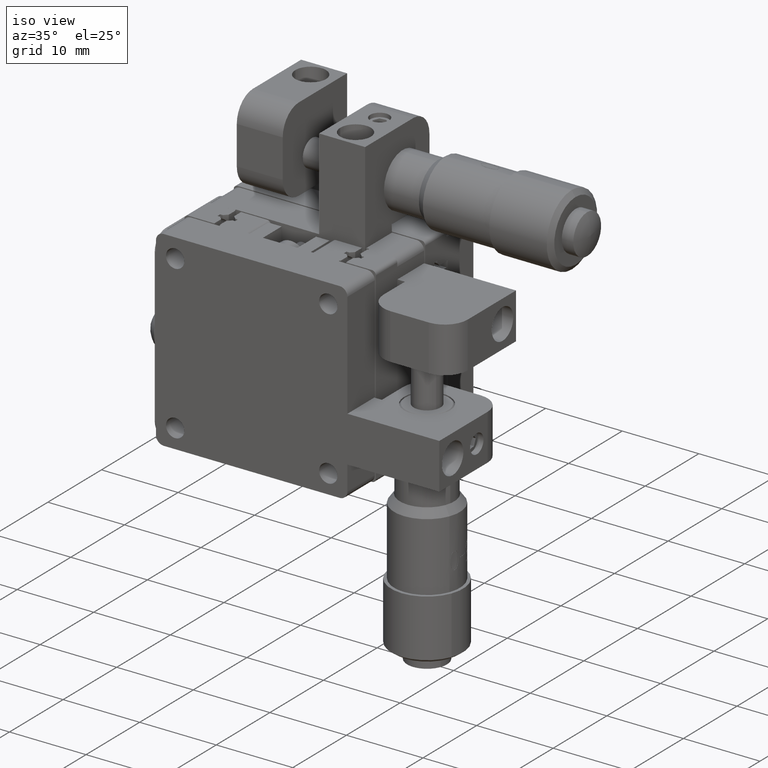
[diagram: clean part render]
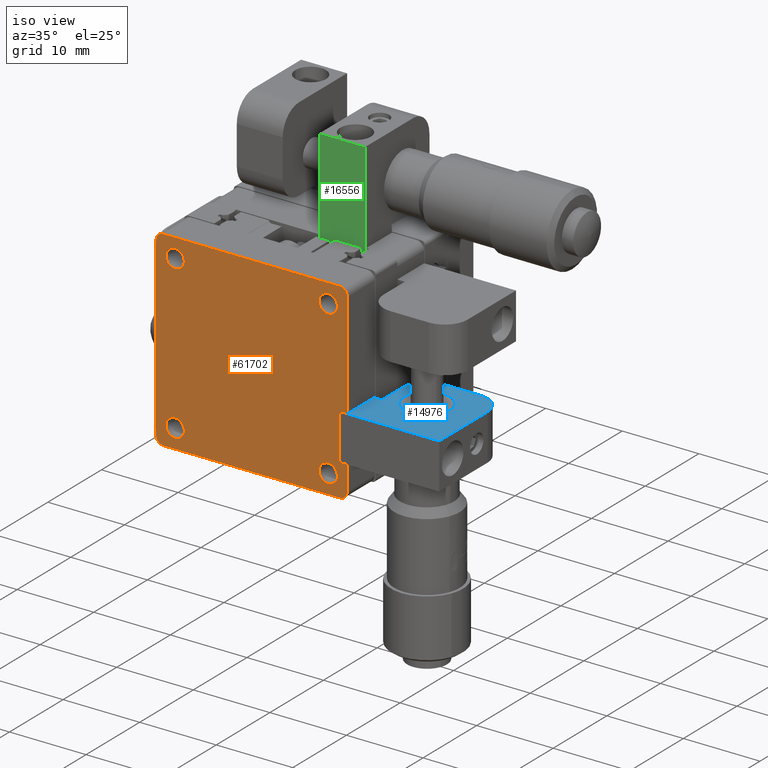
[diagram: same view with three faces highlighted in distinct colors, each labeled with its STEP entity id]
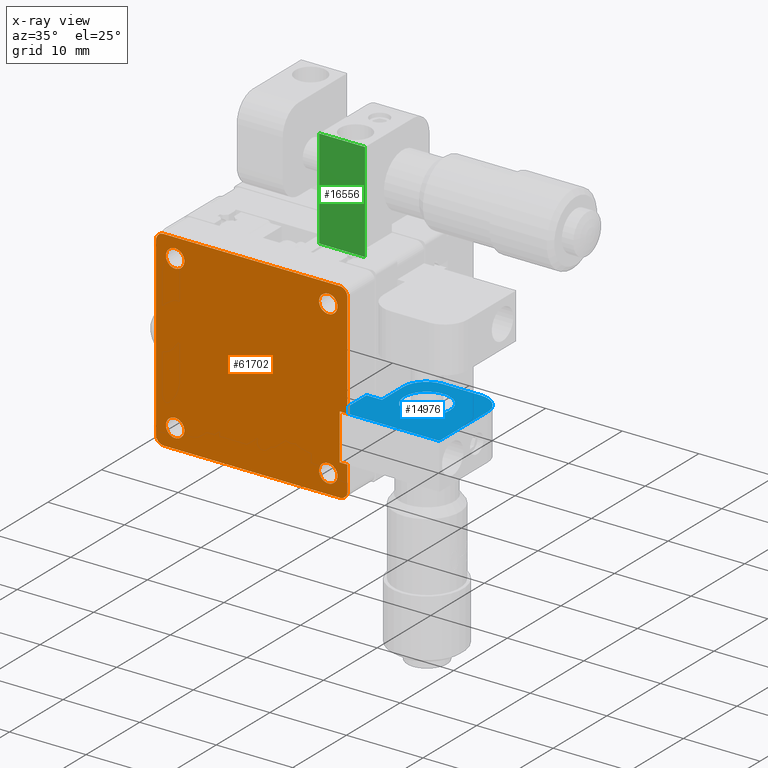
[diagram: x-ray of the same camera — body ghosted, the three highlighted faces saturated]
A machine part, iso view with three faces highlighted in distinct colors.
The next image is the same camera in x-ray (body ghosted, the three faces saturated) — at least one of them is partly hidden behind the body in this view.
Their STEP definitions:

[orange] entity #61702 — the highlighted planar face has unit normal (-0, 1, 0).
#261 = ORIENTED_EDGE ( 'NONE', *, *, #70144, .T. ) ;
#748 = VECTOR ( 'NONE', #80933, 1000.000000000000000 ) ;
#1039 = VERTEX_POINT ( 'NONE', #1574 ) ;
#1574 = CARTESIAN_POINT ( 'NONE',  ( 12.50000000000002100, -9.099999999999997900, -11.50000000000000000 ) ) ;
#1715 = DIRECTION ( 'NONE',  ( -1.000000000000000000, 0.0000000000000000000, 0.0000000000000000000 ) ) ;
#2112 = ORIENTED_EDGE ( 'NONE', *, *, #85989, .T. ) ;
#2422 = ORIENTED_EDGE ( 'NONE', *, *, #95914, .T. ) ;
#2612 = VERTEX_POINT ( 'NONE', #12851 ) ;
#6646 = EDGE_CURVE ( 'NONE', #18508, #70481, #27538, .T. ) ;
#6997 = VERTEX_POINT ( 'NONE', #93574 ) ;
#7050 = ORIENTED_EDGE ( 'NONE', *, *, #13054, .T. ) ;
#7927 = VECTOR ( 'NONE', #33275, 1000.000000000000000 ) ;
#8032 = PLANE ( 'NONE',  #60781 ) ;
#8787 = DIRECTION ( 'NONE',  ( 0.0000000000000000000, 0.0000000000000000000, 1.000000000000000000 ) ) ;
#9580 = FACE_OUTER_BOUND ( 'NONE', #78880, .T. ) ;
#9770 = ORIENTED_EDGE ( 'NONE', *, *, #40759, .T. ) ;
#10073 = ORIENTED_EDGE ( 'NONE', *, *, #58689, .T. ) ;
#10372 = EDGE_CURVE ( 'NONE', #48007, #34296, #69057, .T. ) ;
#10759 = DIRECTION ( 'NONE',  ( -0.0000000000000000000, -0.0000000000000000000, -1.000000000000000000 ) ) ;
#10900 = ORIENTED_EDGE ( 'NONE', *, *, #95437, .T. ) ;
#11340 = CARTESIAN_POINT ( 'NONE',  ( -11.49999999999998200, -9.100000000000001400, -12.50000000000000000 ) ) ;
#12851 = CARTESIAN_POINT ( 'NONE',  ( 11.50000000000002100, -9.099999999999997900, 12.50000000000000000 ) ) ;
#13054 = EDGE_CURVE ( 'NONE', #88216, #15415, #78031, .T. ) ;
#13186 = CARTESIAN_POINT ( 'NONE',  ( 10.00000000000001200, -9.100000000000003200, 11.19999999999999900 ) ) ;
#14100 = EDGE_CURVE ( 'NONE', #94125, #58532, #39589, .T. ) ;
#14773 = AXIS2_PLACEMENT_3D ( 'NONE', #74883, #30477, #75210 ) ;
#15401 = CARTESIAN_POINT ( 'NONE',  ( 10.00000000000001200, -9.100000000000003200, -11.19999999999999600 ) ) ;
#15415 = VERTEX_POINT ( 'NONE', #64496 ) ;
#15575 = CARTESIAN_POINT ( 'NONE',  ( 12.50000000000002100, -9.099999999999997900, 11.50000000000000000 ) ) ;
#15677 = DIRECTION ( 'NONE',  ( 1.224646799147353200E-016, -1.000000000000000000, -0.0000000000000000000 ) ) ;
#15715 = DIRECTION ( 'NONE',  ( -0.0000000000000000000, 1.000000000000000000, -0.0000000000000000000 ) ) ;
#16057 = EDGE_LOOP ( 'NONE', ( #7050, #10900 ) ) ;
#17259 = CARTESIAN_POINT ( 'NONE',  ( 12.50000000000002100, -9.099999999999997900, 12.50000000000000000 ) ) ;
#17478 = AXIS2_PLACEMENT_3D ( 'NONE', #61659, #60695, #90584 ) ;
#18508 = VERTEX_POINT ( 'NONE', #11340 ) ;
#22027 = VERTEX_POINT ( 'NONE', #31333 ) ;
#23328 = ORIENTED_EDGE ( 'NONE', *, *, #14100, .F. ) ;
#26255 = AXIS2_PLACEMENT_3D ( 'NONE', #49009, #64829, #48687 ) ;
#26267 = ORIENTED_EDGE ( 'NONE', *, *, #55721, .F. ) ;
#26410 = VERTEX_POINT ( 'NONE', #55217 ) ;
#26760 = DIRECTION ( 'NONE',  ( -1.000000000000000000, 0.0000000000000000000, 0.0000000000000000000 ) ) ;
#27538 = LINE ( 'NONE', #51103, #748 ) ;
#28233 = FACE_BOUND ( 'NONE', #83517, .T. ) ;
#28337 = CARTESIAN_POINT ( 'NONE',  ( 11.50000000000002100, -9.099999999999997900, -8.299999999999998900 ) ) ;
#28933 = CIRCLE ( 'NONE', #95129, 1.000000000000000900 ) ;
#29719 = VERTEX_POINT ( 'NONE', #41945 ) ;
#30403 = CARTESIAN_POINT ( 'NONE',  ( -11.49999999999998200, -9.100000000000001400, 12.50000000000000000 ) ) ;
#30477 = DIRECTION ( 'NONE',  ( -0.0000000000000000000, 1.000000000000000000, -0.0000000000000000000 ) ) ;
#30496 = EDGE_CURVE ( 'NONE', #44043, #26410, #57892, .T. ) ;
#31333 = CARTESIAN_POINT ( 'NONE',  ( 10.00000000000001200, -9.100000000000003200, 8.800000000000004300 ) ) ;
#31536 = AXIS2_PLACEMENT_3D ( 'NONE', #60738, #46479, #8787 ) ;
#32325 = DIRECTION ( 'NONE',  ( 0.0000000000000000000, 0.0000000000000000000, 1.000000000000000000 ) ) ;
#33275 = DIRECTION ( 'NONE',  ( -0.0000000000000000000, -0.0000000000000000000, -1.000000000000000000 ) ) ;
#34296 = VERTEX_POINT ( 'NONE', #15401 ) ;
#34439 = CIRCLE ( 'NONE', #31536, 1.199999999999998000 ) ;
#35797 = CARTESIAN_POINT ( 'NONE',  ( -11.49999999999998200, -9.100000000000001400, -11.50000000000000000 ) ) ;
#36630 = EDGE_CURVE ( 'NONE', #67864, #2612, #49162, .T. ) ;
#36663 = CARTESIAN_POINT ( 'NONE',  ( -9.999999999999985800, -9.100000000000006800, 10.00000000000000200 ) ) ;
#37278 = CARTESIAN_POINT ( 'NONE',  ( 11.50000000000002100, -9.099999999999997900, -8.299999999999998900 ) ) ;
#37779 = ORIENTED_EDGE ( 'NONE', *, *, #6646, .T. ) ;
#38253 = ORIENTED_EDGE ( 'NONE', *, *, #10372, .T. ) ;
#38489 = DIRECTION ( 'NONE',  ( 0.0000000000000000000, 0.0000000000000000000, 1.000000000000000000 ) ) ;
#39287 = EDGE_CURVE ( 'NONE', #6997, #91897, #93910, .T. ) ;
#39589 = LINE ( 'NONE', #52176, #90691 ) ;
#39940 = CARTESIAN_POINT ( 'NONE',  ( 12.50000000000002100, -9.099999999999997900, -8.299999999999998900 ) ) ;
#40140 = CARTESIAN_POINT ( 'NONE',  ( -11.49999999999998200, -9.100000000000001400, 11.50000000000000000 ) ) ;
#40224 = DIRECTION ( 'NONE',  ( 1.000000000000000000, 1.224646799147353200E-016, 0.0000000000000000000 ) ) ;
#40333 = ORIENTED_EDGE ( 'NONE', *, *, #82238, .T. ) ;
#40759 = EDGE_CURVE ( 'NONE', #91897, #6997, #34439, .T. ) ;
#40887 = CARTESIAN_POINT ( 'NONE',  ( -12.49999999999998400, -9.100000000000001400, 12.50000000000000000 ) ) ;
#41257 = VECTOR ( 'NONE', #10759, 1000.000000000000000 ) ;
#41411 = DIRECTION ( 'NONE',  ( 1.000000000000000000, -0.0000000000000000000, -0.0000000000000000000 ) ) ;
#41502 = ORIENTED_EDGE ( 'NONE', *, *, #36630, .F. ) ;
#41754 = CARTESIAN_POINT ( 'NONE',  ( 11.50000000000002100, -9.099999999999997900, -2.299999999999998900 ) ) ;
#41945 = CARTESIAN_POINT ( 'NONE',  ( 12.50000000000002100, -9.099999999999997900, -2.299999999999998900 ) ) ;
#44043 = VERTEX_POINT ( 'NONE', #54530 ) ;
#44106 = VERTEX_POINT ( 'NONE', #39940 ) ;
#44339 = CIRCLE ( 'NONE', #88674, 1.000000000000000900 ) ;
#45067 = DIRECTION ( 'NONE',  ( -1.224646799147353200E-016, 1.000000000000000000, 0.0000000000000000000 ) ) ;
#45785 = CARTESIAN_POINT ( 'NONE',  ( 11.50000000000002100, -9.099999999999997900, -12.50000000000000000 ) ) ;
#46479 = DIRECTION ( 'NONE',  ( -0.0000000000000000000, 1.000000000000000000, -0.0000000000000000000 ) ) ;
#46602 = ORIENTED_EDGE ( 'NONE', *, *, #79761, .T. ) ;
#47295 = ORIENTED_EDGE ( 'NONE', *, *, #93751, .F. ) ;
#47651 = AXIS2_PLACEMENT_3D ( 'NONE', #52706, #15677, #1715 ) ;
#48007 = VERTEX_POINT ( 'NONE', #62588 ) ;
#48394 = CARTESIAN_POINT ( 'NONE',  ( 11.50000000000002100, -9.099999999999997900, -2.299999999999998900 ) ) ;
#48687 = DIRECTION ( 'NONE',  ( 0.0000000000000000000, 0.0000000000000000000, 1.000000000000000000 ) ) ;
#49009 = CARTESIAN_POINT ( 'NONE',  ( 10.00000000000001200, -9.100000000000003200, 10.00000000000000200 ) ) ;
#49162 = LINE ( 'NONE', #40887, #72303 ) ;
#51103 = CARTESIAN_POINT ( 'NONE',  ( -12.49999999999998400, -9.100000000000001400, -12.50000000000000000 ) ) ;
#51360 = DIRECTION ( 'NONE',  ( 1.000000000000000000, -0.0000000000000000000, -0.0000000000000000000 ) ) ;
#52176 = CARTESIAN_POINT ( 'NONE',  ( 11.50000000000002100, -9.099999999999997900, -2.299999999999998900 ) ) ;
#52706 = CARTESIAN_POINT ( 'NONE',  ( 11.50000000000002100, -9.099999999999997900, 11.50000000000000000 ) ) ;
#53217 = EDGE_LOOP ( 'NONE', ( #38253, #2422 ) ) ;
#53943 = EDGE_CURVE ( 'NONE', #70481, #1039, #88439, .T. ) ;
#54381 = DIRECTION ( 'NONE',  ( -0.0000000000000000000, 1.000000000000000000, -0.0000000000000000000 ) ) ;
#54530 = CARTESIAN_POINT ( 'NONE',  ( -12.49999999999998400, -9.100000000000001400, 11.50000000000000000 ) ) ;
#54747 = DIRECTION ( 'NONE',  ( 1.224646799147353200E-016, -1.000000000000000000, -0.0000000000000000000 ) ) ;
#55217 = CARTESIAN_POINT ( 'NONE',  ( -12.49999999999998400, -9.100000000000001400, -11.50000000000000000 ) ) ;
#55311 = DIRECTION ( 'NONE',  ( 1.224646799147353200E-016, -1.000000000000000000, -0.0000000000000000000 ) ) ;
#55341 = CARTESIAN_POINT ( 'NONE',  ( 10.00000000000001200, -9.100000000000003200, 10.00000000000000200 ) ) ;
#55721 = EDGE_CURVE ( 'NONE', #44106, #1039, #96293, .T. ) ;
#56090 = FACE_BOUND ( 'NONE', #53217, .T. ) ;
#56595 = DIRECTION ( 'NONE',  ( 0.0000000000000000000, 0.0000000000000000000, 1.000000000000000000 ) ) ;
#57892 = LINE ( 'NONE', #77711, #7927 ) ;
#58532 = VERTEX_POINT ( 'NONE', #37278 ) ;
#58689 = EDGE_CURVE ( 'NONE', #94125, #29719, #60028, .T. ) ;
#58808 = VERTEX_POINT ( 'NONE', #13186 ) ;
#58861 = VERTEX_POINT ( 'NONE', #15575 ) ;
#59013 = DIRECTION ( 'NONE',  ( -0.0000000000000000000, 1.000000000000000000, -0.0000000000000000000 ) ) ;
#59193 = ORIENTED_EDGE ( 'NONE', *, *, #89074, .F. ) ;
#59629 = CARTESIAN_POINT ( 'NONE',  ( -12.49999999999998400, -9.100000000000001400, 12.50000000000000000 ) ) ;
#59727 = CARTESIAN_POINT ( 'NONE',  ( 12.50000000000002100, -9.099999999999997900, 12.50000000000000000 ) ) ;
#59928 = DIRECTION ( 'NONE',  ( 0.0000000000000000000, 0.0000000000000000000, -1.000000000000000000 ) ) ;
#60028 = LINE ( 'NONE', #41754, #87895 ) ;
#60695 = DIRECTION ( 'NONE',  ( -0.0000000000000000000, 1.000000000000000000, -0.0000000000000000000 ) ) ;
#60738 = CARTESIAN_POINT ( 'NONE',  ( -9.999999999999985800, -9.100000000000006800, 10.00000000000000200 ) ) ;
#60781 = AXIS2_PLACEMENT_3D ( 'NONE', #59629, #45067, #90183 ) ;
#61659 = CARTESIAN_POINT ( 'NONE',  ( -9.999999999999985800, -9.100000000000006800, -9.999999999999998200 ) ) ;
#61702 = ADVANCED_FACE ( 'NONE', ( #70009, #56090, #82808, #28233, #9580 ), #8032, .F. ) ;
#62588 = CARTESIAN_POINT ( 'NONE',  ( 10.00000000000001200, -9.100000000000003200, -8.800000000000000700 ) ) ;
#62828 = DIRECTION ( 'NONE',  ( -1.000000000000000000, 0.0000000000000000000, 0.0000000000000000000 ) ) ;
#63315 = CARTESIAN_POINT ( 'NONE',  ( -9.999999999999985800, -9.100000000000006800, -8.800000000000000700 ) ) ;
#64087 = AXIS2_PLACEMENT_3D ( 'NONE', #64336, #93311, #56595 ) ;
#64336 = CARTESIAN_POINT ( 'NONE',  ( 10.00000000000001200, -9.100000000000003200, -9.999999999999998200 ) ) ;
#64496 = CARTESIAN_POINT ( 'NONE',  ( -9.999999999999985800, -9.100000000000006800, -11.19999999999999600 ) ) ;
#64631 = DIRECTION ( 'NONE',  ( -1.000000000000000000, 0.0000000000000000000, 0.0000000000000000000 ) ) ;
#64701 = ORIENTED_EDGE ( 'NONE', *, *, #30496, .T. ) ;
#64829 = DIRECTION ( 'NONE',  ( -0.0000000000000000000, 1.000000000000000000, -0.0000000000000000000 ) ) ;
#66705 = LINE ( 'NONE', #17259, #41257 ) ;
#66801 = DIRECTION ( 'NONE',  ( 0.0000000000000000000, 0.0000000000000000000, 1.000000000000000000 ) ) ;
#67195 = VECTOR ( 'NONE', #96139, 1000.000000000000000 ) ;
#67337 = ORIENTED_EDGE ( 'NONE', *, *, #78470, .T. ) ;
#67864 = VERTEX_POINT ( 'NONE', #30403 ) ;
#68687 = CARTESIAN_POINT ( 'NONE',  ( -9.999999999999985800, -9.100000000000006800, 11.19999999999999900 ) ) ;
#69057 = CIRCLE ( 'NONE', #88018, 1.199999999999998000 ) ;
#69158 = AXIS2_PLACEMENT_3D ( 'NONE', #55341, #54381, #32325 ) ;
#70009 = FACE_BOUND ( 'NONE', #16057, .T. ) ;
#70144 = EDGE_CURVE ( 'NONE', #67864, #44043, #44339, .T. ) ;
#70481 = VERTEX_POINT ( 'NONE', #45785 ) ;
#70595 = AXIS2_PLACEMENT_3D ( 'NONE', #36663, #59013, #66801 ) ;
#71777 = CIRCLE ( 'NONE', #64087, 1.199999999999998000 ) ;
#72303 = VECTOR ( 'NONE', #40224, 1000.000000000000000 ) ;
#73973 = CIRCLE ( 'NONE', #47651, 1.000000000000000900 ) ;
#74883 = CARTESIAN_POINT ( 'NONE',  ( -9.999999999999985800, -9.100000000000006800, -9.999999999999998200 ) ) ;
#75128 = AXIS2_PLACEMENT_3D ( 'NONE', #85177, #55311, #26760 ) ;
#75210 = DIRECTION ( 'NONE',  ( 0.0000000000000000000, 0.0000000000000000000, 1.000000000000000000 ) ) ;
#76429 = CIRCLE ( 'NONE', #17478, 1.199999999999998000 ) ;
#77711 = CARTESIAN_POINT ( 'NONE',  ( -12.49999999999998400, -9.100000000000001400, 12.50000000000000000 ) ) ;
#78031 = CIRCLE ( 'NONE', #14773, 1.199999999999998000 ) ;
#78470 = EDGE_CURVE ( 'NONE', #58808, #22027, #87111, .T. ) ;
#78880 = EDGE_LOOP ( 'NONE', ( #23328, #10073, #59193, #40333, #41502, #261, #64701, #2112, #37779, #85280, #26267, #47295 ) ) ;
#79761 = EDGE_CURVE ( 'NONE', #22027, #58808, #96449, .T. ) ;
#80933 = DIRECTION ( 'NONE',  ( 1.000000000000000000, 1.224646799147353200E-016, 0.0000000000000000000 ) ) ;
#82238 = EDGE_CURVE ( 'NONE', #58861, #2612, #73973, .T. ) ;
#82808 = FACE_BOUND ( 'NONE', #92289, .T. ) ;
#83016 = ORIENTED_EDGE ( 'NONE', *, *, #39287, .T. ) ;
#83517 = EDGE_LOOP ( 'NONE', ( #9770, #83016 ) ) ;
#84926 = LINE ( 'NONE', #28337, #94267 ) ;
#85177 = CARTESIAN_POINT ( 'NONE',  ( 11.50000000000002100, -9.099999999999997900, -11.50000000000000000 ) ) ;
#85280 = ORIENTED_EDGE ( 'NONE', *, *, #53943, .T. ) ;
#85989 = EDGE_CURVE ( 'NONE', #26410, #18508, #28933, .T. ) ;
#87111 = CIRCLE ( 'NONE', #26255, 1.199999999999998000 ) ;
#87688 = DIRECTION ( 'NONE',  ( 1.224646799147353200E-016, -1.000000000000000000, -0.0000000000000000000 ) ) ;
#87895 = VECTOR ( 'NONE', #41411, 1000.000000000000000 ) ;
#88018 = AXIS2_PLACEMENT_3D ( 'NONE', #89431, #15715, #38489 ) ;
#88216 = VERTEX_POINT ( 'NONE', #63315 ) ;
#88439 = CIRCLE ( 'NONE', #75128, 1.000000000000000900 ) ;
#88674 = AXIS2_PLACEMENT_3D ( 'NONE', #40140, #54747, #62828 ) ;
#89074 = EDGE_CURVE ( 'NONE', #58861, #29719, #66705, .T. ) ;
#89431 = CARTESIAN_POINT ( 'NONE',  ( 10.00000000000001200, -9.100000000000003200, -9.999999999999998200 ) ) ;
#90183 = DIRECTION ( 'NONE',  ( -1.000000000000000000, -1.224646799147353200E-016, 0.0000000000000000000 ) ) ;
#90584 = DIRECTION ( 'NONE',  ( 0.0000000000000000000, 0.0000000000000000000, 1.000000000000000000 ) ) ;
#90691 = VECTOR ( 'NONE', #59928, 1000.000000000000000 ) ;
#91897 = VERTEX_POINT ( 'NONE', #68687 ) ;
#92289 = EDGE_LOOP ( 'NONE', ( #67337, #46602 ) ) ;
#93311 = DIRECTION ( 'NONE',  ( -0.0000000000000000000, 1.000000000000000000, -0.0000000000000000000 ) ) ;
#93574 = CARTESIAN_POINT ( 'NONE',  ( -9.999999999999985800, -9.100000000000006800, 8.800000000000004300 ) ) ;
#93751 = EDGE_CURVE ( 'NONE', #58532, #44106, #84926, .T. ) ;
#93910 = CIRCLE ( 'NONE', #70595, 1.199999999999998000 ) ;
#94125 = VERTEX_POINT ( 'NONE', #48394 ) ;
#94267 = VECTOR ( 'NONE', #51360, 1000.000000000000000 ) ;
#95129 = AXIS2_PLACEMENT_3D ( 'NONE', #35797, #87688, #64631 ) ;
#95437 = EDGE_CURVE ( 'NONE', #15415, #88216, #76429, .T. ) ;
#95914 = EDGE_CURVE ( 'NONE', #34296, #48007, #71777, .T. ) ;
#96139 = DIRECTION ( 'NONE',  ( -0.0000000000000000000, -0.0000000000000000000, -1.000000000000000000 ) ) ;
#96293 = LINE ( 'NONE', #59727, #67195 ) ;
#96449 = CIRCLE ( 'NONE', #69158, 1.199999999999998000 ) ;

[blue] entity #14976 — the highlighted planar face has unit normal (-0, -0, 1).
#146 = ORIENTED_EDGE ( 'NONE', *, *, #67612, .F. ) ;
#3467 = DIRECTION ( 'NONE',  ( 1.000000000000000000, 1.334402673828317000E-016, 3.451266460341927500E-031 ) ) ;
#5031 = DIRECTION ( 'NONE',  ( 1.000000000000000000, 0.0000000000000000000, 0.0000000000000000000 ) ) ;
#5048 = ORIENTED_EDGE ( 'NONE', *, *, #20749, .T. ) ;
#6107 = CARTESIAN_POINT ( 'NONE',  ( 21.50000000000002100, 2.900000000000027900, -2.299999999999994000 ) ) ;
#7559 = LINE ( 'NONE', #75747, #9885 ) ;
#8349 = LINE ( 'NONE', #35772, #39790 ) ;
#8750 = LINE ( 'NONE', #17769, #29734 ) ;
#8878 = CIRCLE ( 'NONE', #60943, 2.999999999999999100 ) ;
#9885 = VECTOR ( 'NONE', #24812, 1000.000000000000000 ) ;
#11665 = ORIENTED_EDGE ( 'NONE', *, *, #87834, .T. ) ;
#11739 = CARTESIAN_POINT ( 'NONE',  ( 21.00000000000002100, -2.099999999999996500, -2.299999999999994000 ) ) ;
#11906 = CARTESIAN_POINT ( 'NONE',  ( 24.50000000000002100, -9.100000000000021000, -2.299999999999994000 ) ) ;
#12184 = CARTESIAN_POINT ( 'NONE',  ( 16.50000000000002100, -0.09999999999999723000, -2.299999999999994000 ) ) ;
#12286 = CARTESIAN_POINT ( 'NONE',  ( 18.00000000000002100, -2.099999999999996500, -2.299999999999994000 ) ) ;
#12749 = FACE_OUTER_BOUND ( 'NONE', #31168, .T. ) ;
#14282 = CARTESIAN_POINT ( 'NONE',  ( 16.50000000000002500, 2.900000000000024300, -2.299999999999994000 ) ) ;
#14405 = VERTEX_POINT ( 'NONE', #79387 ) ;
#14976 = ADVANCED_FACE ( 'NONE', ( #12749, #24377 ), #80825, .T. ) ;
#17769 = CARTESIAN_POINT ( 'NONE',  ( 24.50000000000002100, -9.100000000000021000, -2.299999999999994000 ) ) ;
#19869 = DIRECTION ( 'NONE',  ( -4.930380657631308500E-032, -1.000000000000000000, 2.120848474419946900E-032 ) ) ;
#19984 = DIRECTION ( 'NONE',  ( 3.697785493223481500E-031, -2.120848474419947500E-032, 1.000000000000000000 ) ) ;
#20198 = CARTESIAN_POINT ( 'NONE',  ( 18.00000000000002100, -2.099999999999996500, -2.299999999999994000 ) ) ;
#20749 = EDGE_CURVE ( 'NONE', #34209, #57661, #8349, .T. ) ;
#22742 = CARTESIAN_POINT ( 'NONE',  ( 13.50000000000002300, -0.09999999999999723000, -2.299999999999994000 ) ) ;
#22859 = AXIS2_PLACEMENT_3D ( 'NONE', #20198, #78929, #34494 ) ;
#23555 = EDGE_CURVE ( 'NONE', #14405, #34209, #83544, .T. ) ;
#24377 = FACE_BOUND ( 'NONE', #95944, .T. ) ;
#24630 = VECTOR ( 'NONE', #64136, 1000.000000000000000 ) ;
#24812 = DIRECTION ( 'NONE',  ( -1.239088197126287400E-016, -1.000000000000000000, 2.120848474419943400E-032 ) ) ;
#28385 = CARTESIAN_POINT ( 'NONE',  ( 21.50000000000002100, -0.09999999999999723000, -2.299999999999994000 ) ) ;
#28693 = EDGE_CURVE ( 'NONE', #58481, #51145, #74399, .T. ) ;
#29734 = VECTOR ( 'NONE', #3467, 1000.000000000000000 ) ;
#31168 = EDGE_LOOP ( 'NONE', ( #61640, #32585, #50628, #41896, #5048, #85128, #35992, #11665 ) ) ;
#32477 = CARTESIAN_POINT ( 'NONE',  ( 24.50000000000002100, -0.09999999999999723000, -2.299999999999994000 ) ) ;
#32585 = ORIENTED_EDGE ( 'NONE', *, *, #71744, .T. ) ;
#32838 = CARTESIAN_POINT ( 'NONE',  ( 24.50000000000002100, 2.900000000000027900, -2.299999999999994000 ) ) ;
#33951 = EDGE_CURVE ( 'NONE', #57661, #45419, #8750, .T. ) ;
#34209 = VERTEX_POINT ( 'NONE', #72849 ) ;
#34494 = DIRECTION ( 'NONE',  ( 1.000000000000000000, 0.0000000000000000000, 0.0000000000000000000 ) ) ;
#35772 = CARTESIAN_POINT ( 'NONE',  ( 11.50000000000002300, -9.100000000000022700, -2.299999999999994000 ) ) ;
#35992 = ORIENTED_EDGE ( 'NONE', *, *, #77181, .T. ) ;
#39790 = VECTOR ( 'NONE', #19869, 1000.000000000000000 ) ;
#41667 = EDGE_CURVE ( 'NONE', #42698, #14405, #7559, .T. ) ;
#41896 = ORIENTED_EDGE ( 'NONE', *, *, #23555, .T. ) ;
#42356 = EDGE_CURVE ( 'NONE', #88207, #73786, #87588, .T. ) ;
#42638 = CARTESIAN_POINT ( 'NONE',  ( 24.50000000000002100, -9.100000000000021000, -2.299999999999994000 ) ) ;
#42698 = VERTEX_POINT ( 'NONE', #22742 ) ;
#44062 = VERTEX_POINT ( 'NONE', #32477 ) ;
#45419 = VERTEX_POINT ( 'NONE', #42638 ) ;
#45464 = CARTESIAN_POINT ( 'NONE',  ( 18.00000000000002100, -3.099999999999998300, -2.299999999999994000 ) ) ;
#45576 = LINE ( 'NONE', #11906, #24630 ) ;
#48331 = DIRECTION ( 'NONE',  ( 1.000000000000000000, 0.0000000000000000000, 0.0000000000000000000 ) ) ;
#48504 = AXIS2_PLACEMENT_3D ( 'NONE', #45464, #96438, #81482 ) ;
#49427 = CIRCLE ( 'NONE', #78587, 2.999999999999999100 ) ;
#49628 = AXIS2_PLACEMENT_3D ( 'NONE', #12184, #65359, #5031 ) ;
#49869 = CARTESIAN_POINT ( 'NONE',  ( 11.50000000000002300, -9.100000000000022700, -2.299999999999994000 ) ) ;
#50628 = ORIENTED_EDGE ( 'NONE', *, *, #41667, .T. ) ;
#51145 = VERTEX_POINT ( 'NONE', #14282 ) ;
#54491 = VECTOR ( 'NONE', #67817, 1000.000000000000000 ) ;
#57661 = VERTEX_POINT ( 'NONE', #49869 ) ;
#58481 = VERTEX_POINT ( 'NONE', #6107 ) ;
#60943 = AXIS2_PLACEMENT_3D ( 'NONE', #28385, #19984, #94635 ) ;
#61640 = ORIENTED_EDGE ( 'NONE', *, *, #28693, .T. ) ;
#64136 = DIRECTION ( 'NONE',  ( 4.930380657631308500E-032, 1.000000000000000000, -2.120848474419946900E-032 ) ) ;
#64183 = DIRECTION ( 'NONE',  ( 3.697785493223481500E-031, -2.120848474419947500E-032, 1.000000000000000000 ) ) ;
#65359 = DIRECTION ( 'NONE',  ( 3.697785493223481500E-031, -2.120848474419947500E-032, 1.000000000000000000 ) ) ;
#65456 = CARTESIAN_POINT ( 'NONE',  ( 15.00000000000002100, -2.099999999999996100, -2.299999999999994000 ) ) ;
#67612 = EDGE_CURVE ( 'NONE', #73786, #88207, #49427, .T. ) ;
#67817 = DIRECTION ( 'NONE',  ( -1.000000000000000000, -4.314083075427408300E-032, -3.451266460341926600E-031 ) ) ;
#71744 = EDGE_CURVE ( 'NONE', #51145, #42698, #89416, .T. ) ;
#72849 = CARTESIAN_POINT ( 'NONE',  ( 11.50000000000002100, -4.100000000000010300, -2.299999999999994000 ) ) ;
#73786 = VERTEX_POINT ( 'NONE', #65456 ) ;
#74399 = LINE ( 'NONE', #32838, #75546 ) ;
#75546 = VECTOR ( 'NONE', #75964, 1000.000000000000000 ) ;
#75747 = CARTESIAN_POINT ( 'NONE',  ( 13.50000000000002300, 2.900000000000024300, -2.299999999999994000 ) ) ;
#75964 = DIRECTION ( 'NONE',  ( -1.000000000000000000, -1.334402673828317000E-016, -3.451266460341927500E-031 ) ) ;
#76244 = CARTESIAN_POINT ( 'NONE',  ( 11.50000000000002100, -4.100000000000010300, -2.299999999999994000 ) ) ;
#77181 = EDGE_CURVE ( 'NONE', #45419, #44062, #45576, .T. ) ;
#78587 = AXIS2_PLACEMENT_3D ( 'NONE', #12286, #64183, #48331 ) ;
#78929 = DIRECTION ( 'NONE',  ( 3.697785493223481500E-031, -2.120848474419947500E-032, 1.000000000000000000 ) ) ;
#79387 = CARTESIAN_POINT ( 'NONE',  ( 13.50000000000002300, -4.100000000000010300, -2.299999999999994000 ) ) ;
#80825 = PLANE ( 'NONE',  #48504 ) ;
#81482 = DIRECTION ( 'NONE',  ( 1.000000000000000000, 4.314083075427408300E-032, 3.451266460341926600E-031 ) ) ;
#83544 = LINE ( 'NONE', #76244, #54491 ) ;
#85128 = ORIENTED_EDGE ( 'NONE', *, *, #33951, .T. ) ;
#87588 = CIRCLE ( 'NONE', #22859, 2.999999999999999100 ) ;
#87834 = EDGE_CURVE ( 'NONE', #44062, #58481, #8878, .T. ) ;
#88207 = VERTEX_POINT ( 'NONE', #11739 ) ;
#88464 = ORIENTED_EDGE ( 'NONE', *, *, #42356, .F. ) ;
#89416 = CIRCLE ( 'NONE', #49628, 2.999999999999999100 ) ;
#94635 = DIRECTION ( 'NONE',  ( 1.000000000000000000, 0.0000000000000000000, 0.0000000000000000000 ) ) ;
#95944 = EDGE_LOOP ( 'NONE', ( #88464, #146 ) ) ;
#96438 = DIRECTION ( 'NONE',  ( -3.451266460341926600E-031, -2.120848474419947500E-032, 1.000000000000000000 ) ) ;

[green] entity #16556 — the highlighted planar face has unit normal (0, 1, -0).
#1238 = VECTOR ( 'NONE', #22547, 1000.000000000000000 ) ;
#1512 = DIRECTION ( 'NONE',  ( 1.198260150553006200E-016, -1.081554113898540200E-016, -1.000000000000000000 ) ) ;
#1603 = DIRECTION ( 'NONE',  ( -1.198260150553006200E-016, 1.081554113898540500E-016, 1.000000000000000000 ) ) ;
#9086 = VECTOR ( 'NONE', #95734, 1000.000000000000000 ) ;
#13116 = CARTESIAN_POINT ( 'NONE',  ( 8.300000000000082400, 0.1999999999999710300, 11.49999999999998200 ) ) ;
#16137 = DIRECTION ( 'NONE',  ( 3.719810023259800400E-032, 1.000000000000000000, -1.081554113898540200E-016 ) ) ;
#16556 = ADVANCED_FACE ( 'NONE', ( #33524 ), #30757, .F. ) ;
#16873 = CARTESIAN_POINT ( 'NONE',  ( 2.300000000000049600, 0.1999999999999736400, 24.49999999999999300 ) ) ;
#19768 = CARTESIAN_POINT ( 'NONE',  ( 8.300000000000078900, 0.1999999999999736400, 24.49999999999999300 ) ) ;
#20137 = VERTEX_POINT ( 'NONE', #16873 ) ;
#20377 = CARTESIAN_POINT ( 'NONE',  ( 2.300000000000051300, 0.1999999999999710300, 11.49999999999999500 ) ) ;
#21321 = VERTEX_POINT ( 'NONE', #42546 ) ;
#22547 = DIRECTION ( 'NONE',  ( 1.000000000000000000, 2.120848474419948300E-032, 1.198260150552998600E-016 ) ) ;
#30128 = CARTESIAN_POINT ( 'NONE',  ( 2.300000000000049600, 0.1999999999999736400, 24.49999999999999300 ) ) ;
#30514 = VECTOR ( 'NONE', #1603, 1000.000000000000000 ) ;
#30757 = PLANE ( 'NONE',  #93493 ) ;
#33262 = VERTEX_POINT ( 'NONE', #20377 ) ;
#33524 = FACE_OUTER_BOUND ( 'NONE', #73192, .T. ) ;
#36773 = ORIENTED_EDGE ( 'NONE', *, *, #43919, .F. ) ;
#37969 = EDGE_CURVE ( 'NONE', #20137, #21321, #42945, .T. ) ;
#38010 = CARTESIAN_POINT ( 'NONE',  ( 2.300000000000049600, 0.1999999999999736400, 24.49999999999999300 ) ) ;
#42546 = CARTESIAN_POINT ( 'NONE',  ( 8.300000000000078900, 0.1999999999999736400, 24.49999999999999300 ) ) ;
#42945 = LINE ( 'NONE', #38010, #69629 ) ;
#43919 = EDGE_CURVE ( 'NONE', #33262, #20137, #59525, .T. ) ;
#47828 = ORIENTED_EDGE ( 'NONE', *, *, #37969, .F. ) ;
#55960 = LINE ( 'NONE', #67296, #1238 ) ;
#57832 = ORIENTED_EDGE ( 'NONE', *, *, #95675, .T. ) ;
#59525 = LINE ( 'NONE', #90256, #30514 ) ;
#62557 = LINE ( 'NONE', #19768, #9086 ) ;
#67296 = CARTESIAN_POINT ( 'NONE',  ( 2.300000000000051300, 0.1999999999999710300, 11.49999999999999500 ) ) ;
#68446 = DIRECTION ( 'NONE',  ( 1.000000000000000000, 2.120848474419948300E-032, 1.198260150552998600E-016 ) ) ;
#69629 = VECTOR ( 'NONE', #68446, 1000.000000000000000 ) ;
#73192 = EDGE_LOOP ( 'NONE', ( #57832, #47828, #36773, #91336 ) ) ;
#90256 = CARTESIAN_POINT ( 'NONE',  ( 2.300000000000049600, 0.1999999999999736400, 24.49999999999999300 ) ) ;
#91336 = ORIENTED_EDGE ( 'NONE', *, *, #93590, .T. ) ;
#93493 = AXIS2_PLACEMENT_3D ( 'NONE', #30128, #16137, #1512 ) ;
#93590 = EDGE_CURVE ( 'NONE', #33262, #96013, #55960, .T. ) ;
#95675 = EDGE_CURVE ( 'NONE', #96013, #21321, #62557, .T. ) ;
#95734 = DIRECTION ( 'NONE',  ( -1.198260150553006200E-016, 1.081554113898540500E-016, 1.000000000000000000 ) ) ;
#96013 = VERTEX_POINT ( 'NONE', #13116 ) ;